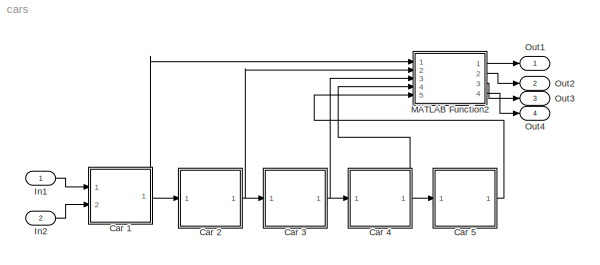
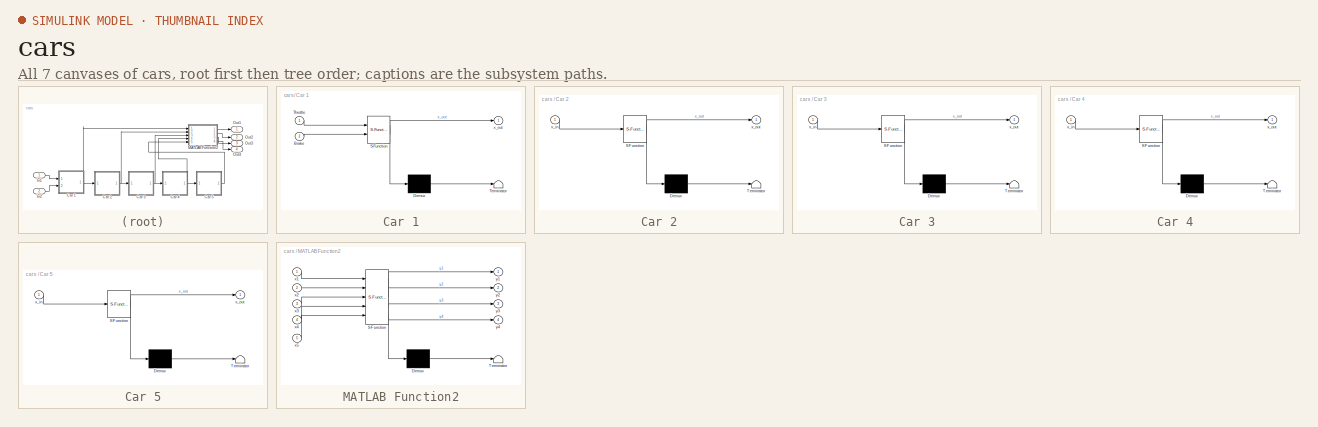
[diagram: thumbnail index - all 7 canvases of the model, root first then tree order]
MODEL cars
KIND model
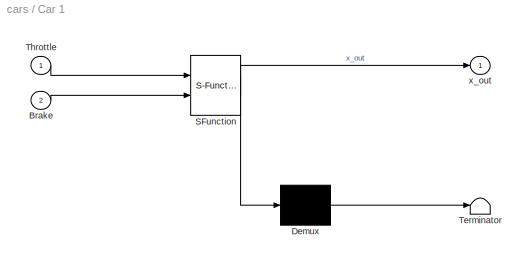
BLOCK [SubSystem] Car 1
  ErrorFcn = Stateflow.Translate.translate
  PermitHierarchicalResolution = ExplicitOnly
  Ports = [2, 1]
  RequestExecContextInheritance = off
  SFBlockType = Chart
  SID = 20
  TreatAsAtomicUnit = on
BLOCK [Demux] Car 1/ Demux 
  Outputs = 1
  Ports = [1, 1]
  SID = 20::90
BLOCK [S-Function] Car 1/ SFunction 
  EnableBusSupport = on
  FunctionName = sf_sfun
  PortCounts = [2 2]
  Ports = [2, 2]
  SFcnIsStateOwnerBlock = off
  SFunctionDeploymentMode = off
  SID = 20::89
  Tag = Stateflow S-Function cars 1
BLOCK [Terminator] Car 1/ Terminator 
  SID = 20::91
BLOCK [Inport] Car 1/Brake
  IconDisplay = Port number
  Port = 2
  SID = 20::93
BLOCK [Inport] Car 1/Throttle
  IconDisplay = Port number
  SID = 20::94
BLOCK [Outport] Car 1/x_out
  IconDisplay = Port number
  SID = 20::95
BLOCK [SubSystem] Car 2
  ErrorFcn = Stateflow.Translate.translate
  PermitHierarchicalResolution = ExplicitOnly
  Ports = [1, 1]
  RequestExecContextInheritance = off
  SFBlockType = Chart
  SID = 1
  TreatAsAtomicUnit = on
BLOCK [Demux] Car 2/ Demux 
  Outputs = 1
  Ports = [1, 1]
  SID = 1::95
BLOCK [S-Function] Car 2/ SFunction 
  EnableBusSupport = on
  FunctionName = sf_sfun
  PortCounts = [1 2]
  Ports = [1, 2]
  SFcnIsStateOwnerBlock = off
  SFunctionDeploymentMode = off
  SID = 1::94
  Tag = Stateflow S-Function cars 3
BLOCK [Terminator] Car 2/ Terminator 
  SID = 1::96
BLOCK [Inport] Car 2/x_in
  IconDisplay = Port number
  SID = 1::102
BLOCK [Outport] Car 2/x_out
  IconDisplay = Port number
  SID = 1::90
BLOCK [SubSystem] Car 3
  ErrorFcn = Stateflow.Translate.translate
  PermitHierarchicalResolution = ExplicitOnly
  Ports = [1, 1]
  RequestExecContextInheritance = off
  SFBlockType = Chart
  SID = 21
  TreatAsAtomicUnit = on
BLOCK [Demux] Car 3/ Demux 
  Outputs = 1
  Ports = [1, 1]
  SID = 21::95
BLOCK [S-Function] Car 3/ SFunction 
  EnableBusSupport = on
  FunctionName = sf_sfun
  PortCounts = [1 2]
  Ports = [1, 2]
  SFcnIsStateOwnerBlock = off
  SFunctionDeploymentMode = off
  SID = 21::94
  Tag = Stateflow S-Function cars 2
BLOCK [Terminator] Car 3/ Terminator 
  SID = 21::96
BLOCK [Inport] Car 3/x_in
  IconDisplay = Port number
  SID = 21::102
BLOCK [Outport] Car 3/x_out
  IconDisplay = Port number
  SID = 21::90
BLOCK [SubSystem] Car 4
  ErrorFcn = Stateflow.Translate.translate
  PermitHierarchicalResolution = ExplicitOnly
  Ports = [1, 1]
  RequestExecContextInheritance = off
  SFBlockType = Chart
  SID = 23
  TreatAsAtomicUnit = on
BLOCK [Demux] Car 4/ Demux 
  Outputs = 1
  Ports = [1, 1]
  SID = 23::95
BLOCK [S-Function] Car 4/ SFunction 
  EnableBusSupport = on
  FunctionName = sf_sfun
  PortCounts = [1 2]
  Ports = [1, 2]
  SFcnIsStateOwnerBlock = off
  SFunctionDeploymentMode = off
  SID = 23::94
  Tag = Stateflow S-Function cars 4
BLOCK [Terminator] Car 4/ Terminator 
  SID = 23::96
BLOCK [Inport] Car 4/x_in
  IconDisplay = Port number
  SID = 23::102
BLOCK [Outport] Car 4/x_out
  IconDisplay = Port number
  SID = 23::90
BLOCK [SubSystem] Car 5
  ErrorFcn = Stateflow.Translate.translate
  PermitHierarchicalResolution = ExplicitOnly
  Ports = [1, 1]
  RequestExecContextInheritance = off
  SFBlockType = Chart
  SID = 25
  TreatAsAtomicUnit = on
BLOCK [Demux] Car 5/ Demux 
  Outputs = 1
  Ports = [1, 1]
  SID = 25::95
BLOCK [S-Function] Car 5/ SFunction 
  EnableBusSupport = on
  FunctionName = sf_sfun
  PortCounts = [1 2]
  Ports = [1, 2]
  SFcnIsStateOwnerBlock = off
  SFunctionDeploymentMode = off
  SID = 25::94
  Tag = Stateflow S-Function cars 5
BLOCK [Terminator] Car 5/ Terminator 
  SID = 25::96
BLOCK [Inport] Car 5/x_in
  IconDisplay = Port number
  SID = 25::102
BLOCK [Outport] Car 5/x_out
  IconDisplay = Port number
  SID = 25::90
BLOCK [Inport] In1
  IconDisplay = Port number
  SID = 35
BLOCK [Inport] In2
  IconDisplay = Port number
  Port = 2
  SID = 36
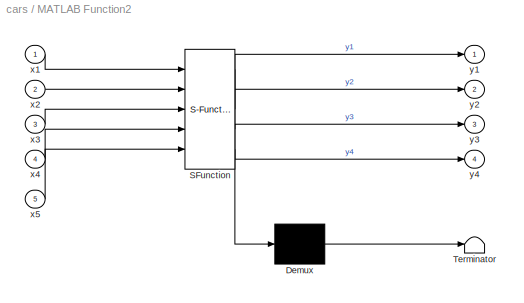
BLOCK [SubSystem] MATLAB Function2
  ErrorFcn = Stateflow.Translate.translate
  PermitHierarchicalResolution = ExplicitOnly
  Ports = [5, 4]
  RequestExecContextInheritance = off
  SFBlockType = MATLAB Function
  SID = 28
  TreatAsAtomicUnit = on
BLOCK [Demux] MATLAB Function2/ Demux 
  Outputs = 1
  Ports = [1, 1]
  SID = 28::20
BLOCK [S-Function] MATLAB Function2/ SFunction 
  EnableBusSupport = on
  FunctionName = sf_sfun
  PortCounts = [5 5]
  Ports = [5, 5]
  SFcnIsStateOwnerBlock = off
  SFunctionDeploymentMode = off
  SID = 28::19
  Tag = Stateflow S-Function cars 6
BLOCK [Terminator] MATLAB Function2/ Terminator 
  SID = 28::21
BLOCK [Inport] MATLAB Function2/x1
  IconDisplay = Port number
  SID = 28::1
BLOCK [Inport] MATLAB Function2/x2
  IconDisplay = Port number
  Port = 2
  SID = 28::23
BLOCK [Inport] MATLAB Function2/x3
  IconDisplay = Port number
  Port = 3
  SID = 28::24
BLOCK [Inport] MATLAB Function2/x4
  IconDisplay = Port number
  Port = 4
  SID = 28::25
BLOCK [Inport] MATLAB Function2/x5
  IconDisplay = Port number
  Port = 5
  SID = 28::26
BLOCK [Outport] MATLAB Function2/y1
  IconDisplay = Port number
  SID = 28::5
BLOCK [Outport] MATLAB Function2/y2
  IconDisplay = Port number
  Port = 2
  SID = 28::27
BLOCK [Outport] MATLAB Function2/y3
  IconDisplay = Port number
  Port = 3
  SID = 28::28
BLOCK [Outport] MATLAB Function2/y4
  IconDisplay = Port number
  Port = 4
  SID = 28::29
BLOCK [Outport] Out1
  IconDisplay = Port number
  SID = 29
BLOCK [Outport] Out2
  IconDisplay = Port number
  Port = 2
  SID = 30
BLOCK [Outport] Out3
  IconDisplay = Port number
  Port = 3
  SID = 31
BLOCK [Outport] Out4
  IconDisplay = Port number
  Port = 4
  SID = 32
LINE Car 1/ Demux :1 -> Car 1/ Terminator :1
LINE Car 1/ SFunction :1 -> Car 1/ Demux :1
LINE Car 1/ SFunction :2 -> Car 1/x_out:1
LINE Car 1/Brake:1 -> Car 1/ SFunction :2
LINE Car 1/Throttle:1 -> Car 1/ SFunction :1
NET Car 1:1 -> Car 2:1, MATLAB Function2:1
LINE Car 2/ Demux :1 -> Car 2/ Terminator :1
LINE Car 2/ SFunction :1 -> Car 2/ Demux :1
LINE Car 2/ SFunction :2 -> Car 2/x_out:1
LINE Car 2/x_in:1 -> Car 2/ SFunction :1
NET Car 2:1 -> Car 3:1, MATLAB Function2:2
LINE Car 3/ Demux :1 -> Car 3/ Terminator :1
LINE Car 3/ SFunction :1 -> Car 3/ Demux :1
LINE Car 3/ SFunction :2 -> Car 3/x_out:1
LINE Car 3/x_in:1 -> Car 3/ SFunction :1
NET Car 3:1 -> Car 4:1, MATLAB Function2:3
LINE Car 4/ Demux :1 -> Car 4/ Terminator :1
LINE Car 4/ SFunction :1 -> Car 4/ Demux :1
LINE Car 4/ SFunction :2 -> Car 4/x_out:1
LINE Car 4/x_in:1 -> Car 4/ SFunction :1
NET Car 4:1 -> Car 5:1, MATLAB Function2:4
LINE Car 5/ Demux :1 -> Car 5/ Terminator :1
LINE Car 5/ SFunction :1 -> Car 5/ Demux :1
LINE Car 5/ SFunction :2 -> Car 5/x_out:1
LINE Car 5/x_in:1 -> Car 5/ SFunction :1
LINE Car 5:1 -> MATLAB Function2:5
LINE In1:1 -> Car 1:1
LINE In2:1 -> Car 1:2
LINE MATLAB Function2/ Demux :1 -> MATLAB Function2/ Terminator :1
LINE MATLAB Function2/ SFunction :1 -> MATLAB Function2/ Demux :1
LINE MATLAB Function2/ SFunction :2 -> MATLAB Function2/y1:1
LINE MATLAB Function2/ SFunction :3 -> MATLAB Function2/y2:1
LINE MATLAB Function2/ SFunction :4 -> MATLAB Function2/y3:1
LINE MATLAB Function2/ SFunction :5 -> MATLAB Function2/y4:1
LINE MATLAB Function2/x1:1 -> MATLAB Function2/ SFunction :1
LINE MATLAB Function2/x2:1 -> MATLAB Function2/ SFunction :2
LINE MATLAB Function2/x3:1 -> MATLAB Function2/ SFunction :3
LINE MATLAB Function2/x4:1 -> MATLAB Function2/ SFunction :4
LINE MATLAB Function2/x5:1 -> MATLAB Function2/ SFunction :5
LINE MATLAB Function2:1 -> Out1:1
LINE MATLAB Function2:2 -> Out2:1
LINE MATLAB Function2:3 -> Out3:1
LINE MATLAB Function2:4 -> Out4:1
note: NET lines group one-source signal fan-out (src -> all destinations, sorted); 1:1 wires keep LINE
CHART Car 1 states=1 transitions=1
  STATE_LABEL 'Run\\nduring:\\nv_dot = -Throttle - Brake * v;\\nx_dot = v;\\nx_out = x;\\n'
CHART Car 3 states=3 transitions=5
  STATE_LABEL 'Chasing\\nduring:\\nv_dot = 1;\\nx_dot = -v;\\nx_out = x;'
  STATE_LABEL 'Keeping \\nduring:\\nx_dot = v;\\nx_out = x;\\n'
  STATE_LABEL 'Braking\\nduring:\\nv_dot = -v;\\nx_dot = -v;\\nx_out = x;'
CHART Car 2 states=3 transitions=5
  STATE_LABEL 'Chasing\\nduring:\\nv_dot = 1;\\nx_dot = -v;\\nx_out = x;'
  STATE_LABEL 'Keeping \\nduring:\\nx_dot = v;\\nx_out = x;\\n'
  STATE_LABEL 'Braking\\nduring:\\nv_dot = -v;\\nx_dot = -v;\\nx_out = x;'
CHART Car 4 states=3 transitions=5
  STATE_LABEL 'Chasing\\nduring:\\nv_dot = 1;\\nx_dot = -v;\\nx_out = x;'
  STATE_LABEL 'Keeping \\nduring:\\nx_dot = v;\\nx_out = x;\\n'
  STATE_LABEL 'Braking\\nduring:\\nv_dot = -v;\\nx_dot = -v;\\nx_out = x;'
CHART Car 5 states=3 transitions=5
  STATE_LABEL 'Keeping \\nduring:\\nx_dot = v;\\nx_out = x;\\n'
  STATE_LABEL 'Chasing\\nduring:\\nv_dot = 1;\\nx_dot = -v;\\nx_out = x;'
  STATE_LABEL 'Braking\\nduring:\\nv_dot = -v;\\nx_dot = -v;\\nx_out = x;'
CHART MATLAB Function2 states=1 transitions=1
  STATE_LABEL 'eML_blk_kernel()'
